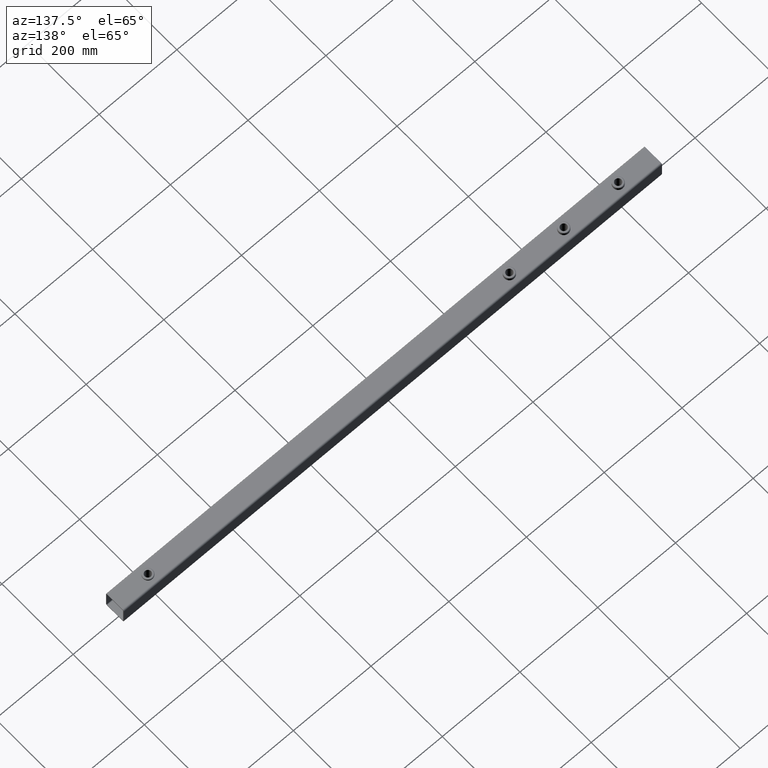
[diagram: clean part render]
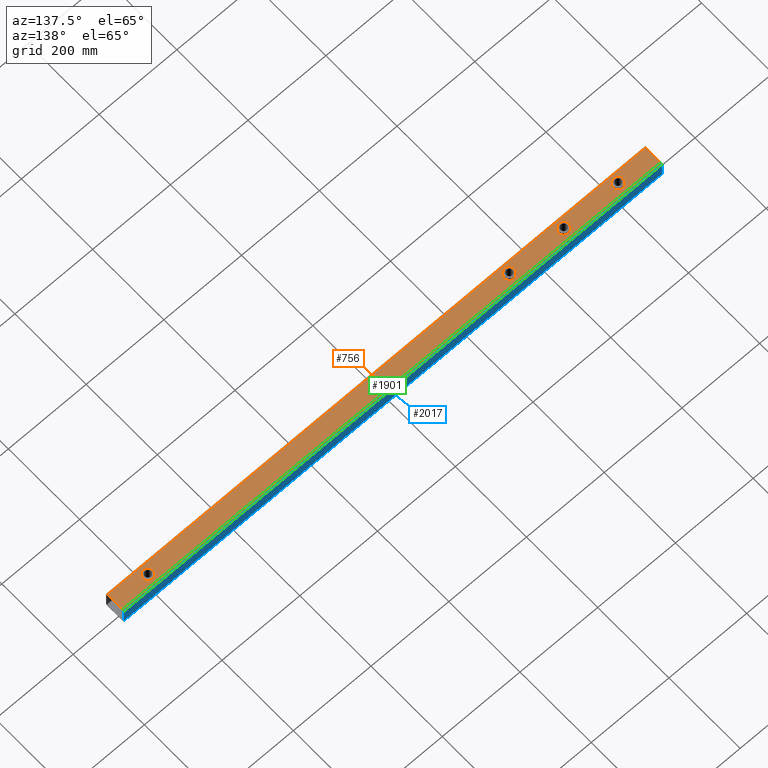
[diagram: same view with three faces highlighted in distinct colors, each labeled with its STEP entity id]
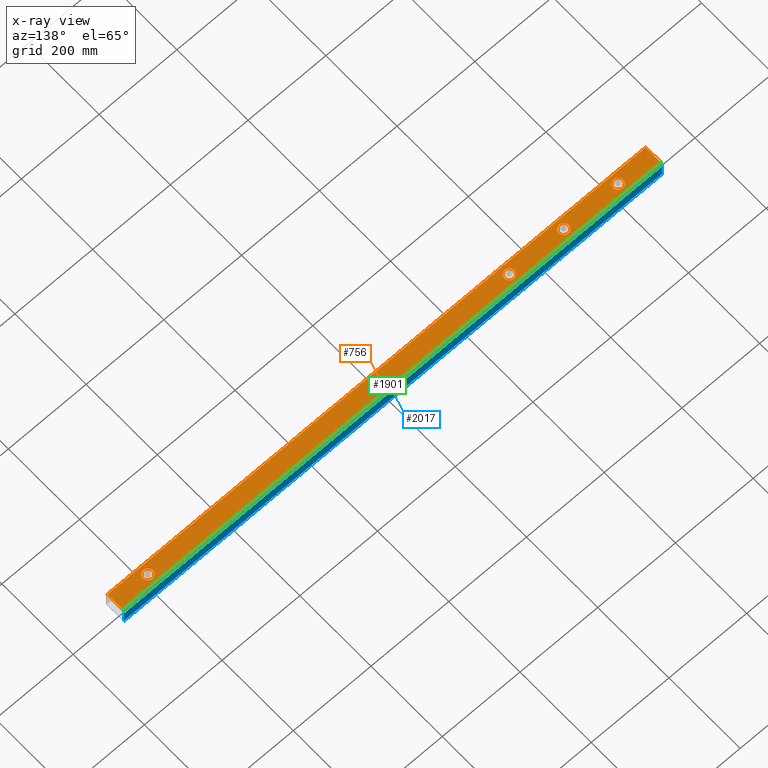
[diagram: x-ray of the same camera — body ghosted, the three highlighted faces saturated]
A machine part, auxiliary view with three faces highlighted in distinct colors.
The next image is the same camera in x-ray (body ghosted, the three faces saturated) — at least one of them is partly hidden behind the body in this view.
Their STEP definitions:

[orange] entity #756 — the highlighted planar face has unit normal (0, -0, -1).
#5 = CARTESIAN_POINT ( 'NONE',  ( -602.5000000000001137, 2.532696274926137348E-13, 24.99999999999998579 ) ) ;
#8 = VERTEX_POINT ( 'NONE', #9 ) ;
#9 = CARTESIAN_POINT ( 'NONE',  ( -615.1000000000002501, 2.548126824595394330E-13, 24.99999999999998579 ) ) ;
#10 = CARTESIAN_POINT ( 'NONE',  ( 607.4999999999998863, 2.547265342226494616E-13, 24.99999999999998579 ) ) ;
#59 = CARTESIAN_POINT ( 'NONE',  ( 594.8999999999999773, 2.562695891895751093E-13, 24.99999999999998579 ) ) ;
#83 = ORIENTED_EDGE ( 'NONE', *, *, #1281, .F. ) ;
#158 = AXIS2_PLACEMENT_3D ( 'NONE', #735, #1197, #1037 ) ;
#167 = CIRCLE ( 'NONE', #1231, 12.59999999999999964 ) ;
#172 = CIRCLE ( 'NONE', #1626, 12.59999999999994458 ) ;
#176 = CARTESIAN_POINT ( 'NONE',  ( 620.0999999999999091, 2.547265342226494616E-13, 24.99999999999998579 ) ) ;
#195 = FACE_BOUND ( 'NONE', #505, .T. ) ;
#205 = CARTESIAN_POINT ( 'NONE',  ( 692.5000000000000000, -20.99999999999979750, 25.00000000000006040 ) ) ;
#210 = DIRECTION ( 'NONE',  ( 0.000000000000000000, 1.000000000000000000, -3.469446951953611822E-15 ) ) ;
#218 = EDGE_CURVE ( 'NONE', #1494, #908, #167, .T. ) ;
#241 = CARTESIAN_POINT ( 'NONE',  ( -449.9000000000001478, 2.547265342226494111E-13, 24.99999999999998579 ) ) ;
#249 = DIRECTION ( 'NONE',  ( 1.000000000000000000, 3.061616997868382648E-16, -0.000000000000000000 ) ) ;
#265 = EDGE_LOOP ( 'NONE', ( #1688, #1471 ) ) ;
#280 = AXIS2_PLACEMENT_3D ( 'NONE', #1135, #1167, #1156 ) ;
#289 = LINE ( 'NONE', #473, #1138 ) ;
#293 = VERTEX_POINT ( 'NONE', #241 ) ;
#323 = CARTESIAN_POINT ( 'NONE',  ( -692.5000000000000000, 20.99999999999981171, 24.99999999999991473 ) ) ;
#356 = CIRCLE ( 'NONE', #1133, 12.60000000000005471 ) ;
#390 = PLANE ( 'NONE',  #1697 ) ;
#413 = CIRCLE ( 'NONE', #158, 12.59999999999999964 ) ;
#415 = LINE ( 'NONE', #1601, #494 ) ;
#419 = EDGE_LOOP ( 'NONE', ( #1030, #1195 ) ) ;
#451 = CARTESIAN_POINT ( 'NONE',  ( 692.5000000000000000, 21.00000000000023448, 24.99999999999991473 ) ) ;
#473 = CARTESIAN_POINT ( 'NONE',  ( -692.5000000000000000, -21.00000000000022027, 25.00000000000006040 ) ) ;
#494 = VECTOR ( 'NONE', #249, 1000.000000000000000 ) ;
#498 = CARTESIAN_POINT ( 'NONE',  ( -589.9000000000000909, 2.532696274926137348E-13, 24.99999999999998579 ) ) ;
#500 = VERTEX_POINT ( 'NONE', #176 ) ;
#505 = EDGE_LOOP ( 'NONE', ( #83, #1654 ) ) ;
#551 = EDGE_CURVE ( 'NONE', #8, #1075, #356, .T. ) ;
#594 = EDGE_CURVE ( 'NONE', #1723, #500, #172, .T. ) ;
#601 = ORIENTED_EDGE ( 'NONE', *, *, #1364, .F. ) ;
#619 = CARTESIAN_POINT ( 'NONE',  ( -309.9000000000001478, 2.547265342226494616E-13, 24.99999999999998579 ) ) ;
#655 = VECTOR ( 'NONE', #867, 1000.000000000000000 ) ;
#664 = CARTESIAN_POINT ( 'NONE',  ( -475.1000000000001364, 2.562695891895751093E-13, 24.99999999999998579 ) ) ;
#685 = EDGE_LOOP ( 'NONE', ( #1118, #1947, #734, #1578 ) ) ;
#706 = CARTESIAN_POINT ( 'NONE',  ( -602.5000000000001137, 2.532696274926137348E-13, 24.99999999999998579 ) ) ;
#712 = CIRCLE ( 'NONE', #280, 12.59999999999999964 ) ;
#729 = FACE_BOUND ( 'NONE', #881, .T. ) ;
#732 = CARTESIAN_POINT ( 'NONE',  ( -692.5000000000000000, -21.00000000000022027, 25.00000000000006040 ) ) ;
#734 = ORIENTED_EDGE ( 'NONE', *, *, #1788, .F. ) ;
#735 = CARTESIAN_POINT ( 'NONE',  ( -322.5000000000001137, 2.547265342226494616E-13, 24.99999999999998579 ) ) ;
#756 = ADVANCED_FACE ( 'NONE', ( #1372, #1865, #729, #195, #1551 ), #390, .F. ) ;
#765 = CARTESIAN_POINT ( 'NONE',  ( -692.5000000000000000, -21.00000000000022027, 25.00000000000006040 ) ) ;
#795 = CARTESIAN_POINT ( 'NONE',  ( -462.5000000000001137, 2.547265342226494111E-13, 24.99999999999998579 ) ) ;
#797 = AXIS2_PLACEMENT_3D ( 'NONE', #795, #1150, #1990 ) ;
#807 = VERTEX_POINT ( 'NONE', #205 ) ;
#812 = DIRECTION ( 'NONE',  ( 0.000000000000000000, 0.000000000000000000, 1.000000000000000000 ) ) ;
#853 = LINE ( 'NONE', #1700, #655 ) ;
#861 = DIRECTION ( 'NONE',  ( 0.000000000000000000, 0.000000000000000000, 1.000000000000000000 ) ) ;
#867 = DIRECTION ( 'NONE',  ( 0.000000000000000000, 1.000000000000000000, -3.469446951953611822E-15 ) ) ;
#874 = EDGE_CURVE ( 'NONE', #2117, #1893, #415, .T. ) ;
#881 = EDGE_LOOP ( 'NONE', ( #601, #1857 ) ) ;
#888 = LINE ( 'NONE', #732, #1637 ) ;
#906 = AXIS2_PLACEMENT_3D ( 'NONE', #10, #1836, #1353 ) ;
#908 = VERTEX_POINT ( 'NONE', #619 ) ;
#995 = DIRECTION ( 'NONE',  ( 1.000000000000000000, 0.000000000000000000, 0.000000000000000000 ) ) ;
#1030 = ORIENTED_EDGE ( 'NONE', *, *, #1642, .F. ) ;
#1037 = DIRECTION ( 'NONE',  ( 1.000000000000000000, 0.000000000000000000, 0.000000000000000000 ) ) ;
#1053 = AXIS2_PLACEMENT_3D ( 'NONE', #706, #1506, #995 ) ;
#1059 = CARTESIAN_POINT ( 'NONE',  ( -692.5000000000000000, -21.00000000000022027, 25.00000000000006040 ) ) ;
#1075 = VERTEX_POINT ( 'NONE', #498 ) ;
#1094 = VERTEX_POINT ( 'NONE', #664 ) ;
#1116 = CARTESIAN_POINT ( 'NONE',  ( -335.1000000000001364, 2.562695891895751093E-13, 24.99999999999998579 ) ) ;
#1118 = ORIENTED_EDGE ( 'NONE', *, *, #1554, .T. ) ;
#1133 = AXIS2_PLACEMENT_3D ( 'NONE', #5, #861, #2023 ) ;
#1135 = CARTESIAN_POINT ( 'NONE',  ( -462.5000000000001137, 2.547265342226494111E-13, 24.99999999999998579 ) ) ;
#1138 = VECTOR ( 'NONE', #1148, 1000.000000000000000 ) ;
#1148 = DIRECTION ( 'NONE',  ( 1.000000000000000000, 3.061616997868382648E-16, -0.000000000000000000 ) ) ;
#1150 = DIRECTION ( 'NONE',  ( 0.000000000000000000, 0.000000000000000000, 1.000000000000000000 ) ) ;
#1156 = DIRECTION ( 'NONE',  ( 1.000000000000000000, 0.000000000000000000, 0.000000000000000000 ) ) ;
#1167 = DIRECTION ( 'NONE',  ( 0.000000000000000000, 0.000000000000000000, 1.000000000000000000 ) ) ;
#1195 = ORIENTED_EDGE ( 'NONE', *, *, #551, .F. ) ;
#1197 = DIRECTION ( 'NONE',  ( 0.000000000000000000, 0.000000000000000000, 1.000000000000000000 ) ) ;
#1227 = DIRECTION ( 'NONE',  ( 1.062211776130382841E-30, -3.469446951953612217E-15, -1.000000000000000000 ) ) ;
#1231 = AXIS2_PLACEMENT_3D ( 'NONE', #1397, #1919, #1387 ) ;
#1281 = EDGE_CURVE ( 'NONE', #908, #1494, #413, .T. ) ;
#1353 = DIRECTION ( 'NONE',  ( 1.000000000000000000, 0.000000000000000000, 0.000000000000000000 ) ) ;
#1359 = CARTESIAN_POINT ( 'NONE',  ( 607.4999999999998863, 2.547265342226494616E-13, 24.99999999999998579 ) ) ;
#1364 = EDGE_CURVE ( 'NONE', #293, #1094, #1886, .T. ) ;
#1372 = FACE_BOUND ( 'NONE', #265, .T. ) ;
#1387 = DIRECTION ( 'NONE',  ( 1.000000000000000000, 0.000000000000000000, 0.000000000000000000 ) ) ;
#1397 = CARTESIAN_POINT ( 'NONE',  ( -322.5000000000001137, 2.547265342226494616E-13, 24.99999999999998579 ) ) ;
#1424 = CIRCLE ( 'NONE', #1053, 12.60000000000005471 ) ;
#1471 = ORIENTED_EDGE ( 'NONE', *, *, #594, .F. ) ;
#1476 = DIRECTION ( 'NONE',  ( 1.000000000000000000, 0.000000000000000000, 0.000000000000000000 ) ) ;
#1493 = VERTEX_POINT ( 'NONE', #765 ) ;
#1494 = VERTEX_POINT ( 'NONE', #1116 ) ;
#1506 = DIRECTION ( 'NONE',  ( 0.000000000000000000, 0.000000000000000000, 1.000000000000000000 ) ) ;
#1539 = DIRECTION ( 'NONE',  ( 0.000000000000000000, 1.000000000000000000, -3.469446951953612217E-15 ) ) ;
#1551 = FACE_OUTER_BOUND ( 'NONE', #685, .T. ) ;
#1554 = EDGE_CURVE ( 'NONE', #807, #1893, #853, .T. ) ;
#1578 = ORIENTED_EDGE ( 'NONE', *, *, #2007, .T. ) ;
#1601 = CARTESIAN_POINT ( 'NONE',  ( -692.5000000000000000, 20.99999999999981171, 24.99999999999991473 ) ) ;
#1626 = AXIS2_PLACEMENT_3D ( 'NONE', #1359, #812, #1476 ) ;
#1637 = VECTOR ( 'NONE', #210, 1000.000000000000000 ) ;
#1642 = EDGE_CURVE ( 'NONE', #1075, #8, #1424, .T. ) ;
#1654 = ORIENTED_EDGE ( 'NONE', *, *, #218, .F. ) ;
#1677 = EDGE_CURVE ( 'NONE', #500, #1723, #1951, .T. ) ;
#1688 = ORIENTED_EDGE ( 'NONE', *, *, #1677, .F. ) ;
#1697 = AXIS2_PLACEMENT_3D ( 'NONE', #1059, #1227, #1539 ) ;
#1700 = CARTESIAN_POINT ( 'NONE',  ( 692.5000000000000000, -20.99999999999979750, 25.00000000000006040 ) ) ;
#1723 = VERTEX_POINT ( 'NONE', #59 ) ;
#1788 = EDGE_CURVE ( 'NONE', #1493, #2117, #888, .T. ) ;
#1836 = DIRECTION ( 'NONE',  ( 0.000000000000000000, 0.000000000000000000, 1.000000000000000000 ) ) ;
#1857 = ORIENTED_EDGE ( 'NONE', *, *, #2084, .F. ) ;
#1865 = FACE_BOUND ( 'NONE', #419, .T. ) ;
#1886 = CIRCLE ( 'NONE', #797, 12.59999999999999964 ) ;
#1893 = VERTEX_POINT ( 'NONE', #451 ) ;
#1919 = DIRECTION ( 'NONE',  ( 0.000000000000000000, 0.000000000000000000, 1.000000000000000000 ) ) ;
#1947 = ORIENTED_EDGE ( 'NONE', *, *, #874, .F. ) ;
#1951 = CIRCLE ( 'NONE', #906, 12.59999999999994458 ) ;
#1990 = DIRECTION ( 'NONE',  ( 1.000000000000000000, 0.000000000000000000, 0.000000000000000000 ) ) ;
#2007 = EDGE_CURVE ( 'NONE', #1493, #807, #289, .T. ) ;
#2023 = DIRECTION ( 'NONE',  ( 1.000000000000000000, 0.000000000000000000, 0.000000000000000000 ) ) ;
#2084 = EDGE_CURVE ( 'NONE', #1094, #293, #712, .T. ) ;
#2117 = VERTEX_POINT ( 'NONE', #323 ) ;

[blue] entity #2017 — the highlighted planar face has unit normal (0, -1, 0).
#85 = VERTEX_POINT ( 'NONE', #1020 ) ;
#93 = CARTESIAN_POINT ( 'NONE',  ( -692.5000000000000000, 24.99999999999964118, -21.00000000000008527 ) ) ;
#186 = DIRECTION ( 'NONE',  ( -0.000000000000000000, -3.634658711570454838E-15, -1.000000000000000000 ) ) ;
#221 = CARTESIAN_POINT ( 'NONE',  ( -692.5000000000000000, 24.99999999999964118, -21.00000000000008527 ) ) ;
#259 = LINE ( 'NONE', #1613, #1621 ) ;
#267 = EDGE_CURVE ( 'NONE', #1838, #987, #394, .T. ) ;
#360 = AXIS2_PLACEMENT_3D ( 'NONE', #93, #598, #1272 ) ;
#370 = CARTESIAN_POINT ( 'NONE',  ( 692.5000000000000000, 25.00000000000006395, -21.00000000000008527 ) ) ;
#394 = LINE ( 'NONE', #221, #1333 ) ;
#474 = VERTEX_POINT ( 'NONE', #1027 ) ;
#535 = LINE ( 'NONE', #370, #1068 ) ;
#598 = DIRECTION ( 'NONE',  ( 3.061616997868382648E-16, -1.000000000000000000, 3.634658711570454838E-15 ) ) ;
#635 = ORIENTED_EDGE ( 'NONE', *, *, #267, .F. ) ;
#636 = EDGE_CURVE ( 'NONE', #85, #474, #535, .T. ) ;
#788 = DIRECTION ( 'NONE',  ( 1.000000000000000000, 3.061616997868382648E-16, -0.000000000000000000 ) ) ;
#973 = EDGE_CURVE ( 'NONE', #987, #474, #259, .T. ) ;
#987 = VERTEX_POINT ( 'NONE', #2119 ) ;
#1020 = CARTESIAN_POINT ( 'NONE',  ( 692.5000000000000000, 25.00000000000021672, 20.99999999999989697 ) ) ;
#1027 = CARTESIAN_POINT ( 'NONE',  ( 692.5000000000000000, 25.00000000000006395, -21.00000000000008527 ) ) ;
#1061 = CARTESIAN_POINT ( 'NONE',  ( -692.5000000000000000, 24.99999999999979394, 20.99999999999989697 ) ) ;
#1068 = VECTOR ( 'NONE', #186, 1000.000000000000000 ) ;
#1182 = CARTESIAN_POINT ( 'NONE',  ( -692.5000000000000000, 24.99999999999979394, 20.99999999999989697 ) ) ;
#1272 = DIRECTION ( 'NONE',  ( 0.000000000000000000, -3.634658711570454838E-15, -1.000000000000000000 ) ) ;
#1333 = VECTOR ( 'NONE', #1403, 1000.000000000000000 ) ;
#1403 = DIRECTION ( 'NONE',  ( -0.000000000000000000, -3.634658711570454838E-15, -1.000000000000000000 ) ) ;
#1460 = VECTOR ( 'NONE', #1543, 1000.000000000000000 ) ;
#1543 = DIRECTION ( 'NONE',  ( 1.000000000000000000, 3.061616997868382648E-16, -0.000000000000000000 ) ) ;
#1546 = ORIENTED_EDGE ( 'NONE', *, *, #636, .T. ) ;
#1613 = CARTESIAN_POINT ( 'NONE',  ( -692.5000000000000000, 24.99999999999964118, -21.00000000000008527 ) ) ;
#1616 = FACE_OUTER_BOUND ( 'NONE', #1979, .T. ) ;
#1617 = EDGE_CURVE ( 'NONE', #1838, #85, #1998, .T. ) ;
#1621 = VECTOR ( 'NONE', #788, 1000.000000000000000 ) ;
#1623 = ORIENTED_EDGE ( 'NONE', *, *, #1617, .T. ) ;
#1838 = VERTEX_POINT ( 'NONE', #1061 ) ;
#1967 = ORIENTED_EDGE ( 'NONE', *, *, #973, .F. ) ;
#1979 = EDGE_LOOP ( 'NONE', ( #1546, #1967, #635, #1623 ) ) ;
#1998 = LINE ( 'NONE', #1182, #1460 ) ;
#2017 = ADVANCED_FACE ( 'NONE', ( #1616 ), #2102, .F. ) ;
#2102 = PLANE ( 'NONE',  #360 ) ;
#2119 = CARTESIAN_POINT ( 'NONE',  ( -692.5000000000000000, 24.99999999999964118, -21.00000000000008527 ) ) ;

[green] entity #1901 — the highlighted cylindrical surface (edge-blend (fillet) strip) has radius 4 mm, axis along (1, 0, 0).
#62 = AXIS2_PLACEMENT_3D ( 'NONE', #1988, #1685, #826 ) ;
#85 = VERTEX_POINT ( 'NONE', #1020 ) ;
#207 = CIRCLE ( 'NONE', #62, 4.000000000000003553 ) ;
#214 = ORIENTED_EDGE ( 'NONE', *, *, #2110, .T. ) ;
#249 = DIRECTION ( 'NONE',  ( 1.000000000000000000, 3.061616997868382648E-16, -0.000000000000000000 ) ) ;
#284 = AXIS2_PLACEMENT_3D ( 'NONE', #439, #648, #1770 ) ;
#300 = CYLINDRICAL_SURFACE ( 'NONE', #284, 4.000000000000003553 ) ;
#323 = CARTESIAN_POINT ( 'NONE',  ( -692.5000000000000000, 20.99999999999981171, 24.99999999999991473 ) ) ;
#415 = LINE ( 'NONE', #1601, #494 ) ;
#439 = CARTESIAN_POINT ( 'NONE',  ( -692.5000000000000000, 20.99999999999979039, 20.99999999999991118 ) ) ;
#451 = CARTESIAN_POINT ( 'NONE',  ( 692.5000000000000000, 21.00000000000023448, 24.99999999999991473 ) ) ;
#494 = VECTOR ( 'NONE', #249, 1000.000000000000000 ) ;
#648 = DIRECTION ( 'NONE',  ( 1.000000000000000000, 3.061616997868382648E-16, -0.000000000000000000 ) ) ;
#794 = EDGE_LOOP ( 'NONE', ( #214, #1533, #1944, #1363 ) ) ;
#826 = DIRECTION ( 'NONE',  ( 0.000000000000000000, -1.000000000000000000, 0.000000000000000000 ) ) ;
#874 = EDGE_CURVE ( 'NONE', #2117, #1893, #415, .T. ) ;
#1020 = CARTESIAN_POINT ( 'NONE',  ( 692.5000000000000000, 25.00000000000021672, 20.99999999999989697 ) ) ;
#1061 = CARTESIAN_POINT ( 'NONE',  ( -692.5000000000000000, 24.99999999999979394, 20.99999999999989697 ) ) ;
#1182 = CARTESIAN_POINT ( 'NONE',  ( -692.5000000000000000, 24.99999999999979394, 20.99999999999989697 ) ) ;
#1261 = EDGE_CURVE ( 'NONE', #2117, #1838, #1782, .T. ) ;
#1363 = ORIENTED_EDGE ( 'NONE', *, *, #874, .T. ) ;
#1460 = VECTOR ( 'NONE', #1543, 1000.000000000000000 ) ;
#1533 = ORIENTED_EDGE ( 'NONE', *, *, #1617, .F. ) ;
#1543 = DIRECTION ( 'NONE',  ( 1.000000000000000000, 3.061616997868382648E-16, -0.000000000000000000 ) ) ;
#1601 = CARTESIAN_POINT ( 'NONE',  ( -692.5000000000000000, 20.99999999999981171, 24.99999999999991473 ) ) ;
#1617 = EDGE_CURVE ( 'NONE', #1838, #85, #1998, .T. ) ;
#1685 = DIRECTION ( 'NONE',  ( -1.000000000000000000, -3.061616997868382648E-16, 0.000000000000000000 ) ) ;
#1715 = CARTESIAN_POINT ( 'NONE',  ( -692.5000000000000000, 20.99999999999979039, 20.99999999999991118 ) ) ;
#1749 = AXIS2_PLACEMENT_3D ( 'NONE', #1715, #2031, #2093 ) ;
#1770 = DIRECTION ( 'NONE',  ( 0.000000000000000000, 1.000000000000000000, 0.000000000000000000 ) ) ;
#1782 = CIRCLE ( 'NONE', #1749, 4.000000000000003553 ) ;
#1838 = VERTEX_POINT ( 'NONE', #1061 ) ;
#1893 = VERTEX_POINT ( 'NONE', #451 ) ;
#1901 = ADVANCED_FACE ( 'NONE', ( #1976 ), #300, .T. ) ;
#1944 = ORIENTED_EDGE ( 'NONE', *, *, #1261, .F. ) ;
#1976 = FACE_OUTER_BOUND ( 'NONE', #794, .T. ) ;
#1988 = CARTESIAN_POINT ( 'NONE',  ( 692.5000000000000000, 21.00000000000021316, 20.99999999999991118 ) ) ;
#1998 = LINE ( 'NONE', #1182, #1460 ) ;
#2031 = DIRECTION ( 'NONE',  ( -1.000000000000000000, -3.061616997868382648E-16, 0.000000000000000000 ) ) ;
#2093 = DIRECTION ( 'NONE',  ( 0.000000000000000000, -1.000000000000000000, 0.000000000000000000 ) ) ;
#2110 = EDGE_CURVE ( 'NONE', #1893, #85, #207, .T. ) ;
#2117 = VERTEX_POINT ( 'NONE', #323 ) ;